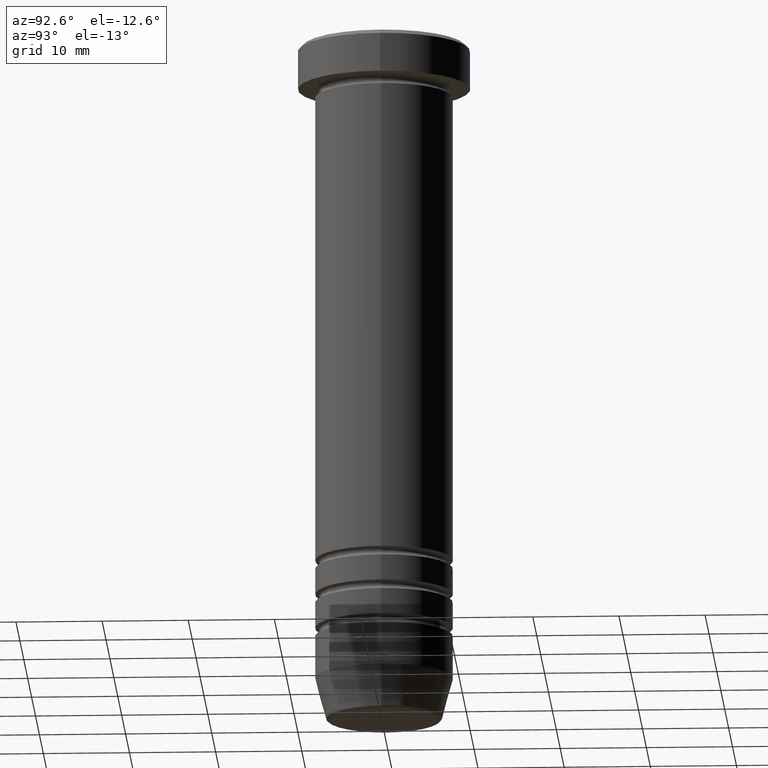
[diagram: clean part render]
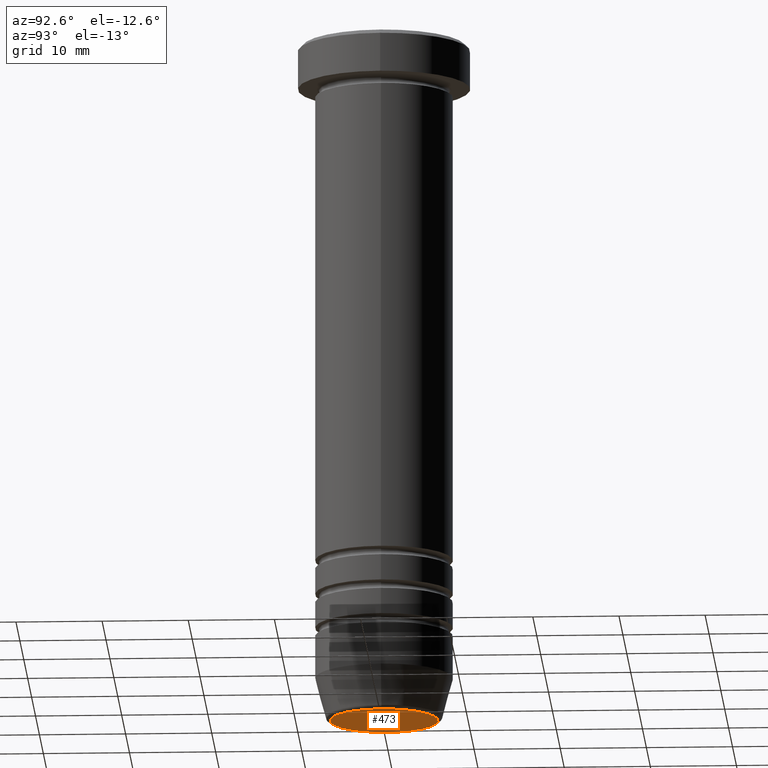
[diagram: same view with one face highlighted and labeled with its STEP entity id]
A machine part, auxiliary view. The second image highlights one B-rep face of the part: STEP entity #473.
In plain terms, the highlighted planar face has unit normal (0, -0, 1).
Its self-contained STEP definition (entity closure, byte-faithful):
#23 = ORIENTED_EDGE ( 'NONE', *, *, #213, .T. ) ;
#43 = CARTESIAN_POINT ( 'NONE',  ( -6.276590543854900339, 7.982336011935116411E-16, -79.99999999999998579 ) ) ;
#62 = CARTESIAN_POINT ( 'NONE',  ( 0.000000000000000000, 0.000000000000000000, -79.99999999999998579 ) ) ;
#93 = ORIENTED_EDGE ( 'NONE', *, *, #737, .T. ) ;
#105 = CIRCLE ( 'NONE', #796, 6.276590543854900339 ) ;
#213 = EDGE_CURVE ( 'NONE', #926, #488, #1031, .T. ) ;
#227 = DIRECTION ( 'NONE',  ( 1.000000000000000000, 0.000000000000000000, 0.000000000000000000 ) ) ;
#255 = EDGE_LOOP ( 'NONE', ( #93, #23 ) ) ;
#298 = DIRECTION ( 'NONE',  ( 0.000000000000000000, -0.000000000000000000, 1.000000000000000000 ) ) ;
#381 = DIRECTION ( 'NONE',  ( 1.000000000000000000, 0.000000000000000000, 0.000000000000000000 ) ) ;
#473 = ADVANCED_FACE ( 'NONE', ( #516 ), #841, .F. ) ;
#488 = VERTEX_POINT ( 'NONE', #527 ) ;
#516 = FACE_OUTER_BOUND ( 'NONE', #255, .T. ) ;
#527 = CARTESIAN_POINT ( 'NONE',  ( 6.276590543854900339, 0.000000000000000000, -79.99999999999998579 ) ) ;
#638 = CARTESIAN_POINT ( 'NONE',  ( 0.000000000000000000, 0.000000000000000000, -79.99999999999998579 ) ) ;
#642 = DIRECTION ( 'NONE',  ( 1.000000000000000000, 0.000000000000000000, 0.000000000000000000 ) ) ;
#737 = EDGE_CURVE ( 'NONE', #488, #926, #105, .T. ) ;
#795 = AXIS2_PLACEMENT_3D ( 'NONE', #638, #888, #227 ) ;
#796 = AXIS2_PLACEMENT_3D ( 'NONE', #62, #966, #642 ) ;
#841 = PLANE ( 'NONE',  #1015 ) ;
#888 = DIRECTION ( 'NONE',  ( 0.000000000000000000, 0.000000000000000000, -1.000000000000000000 ) ) ;
#926 = VERTEX_POINT ( 'NONE', #43 ) ;
#948 = CARTESIAN_POINT ( 'NONE',  ( 0.000000000000000000, 3.673940397442057600E-15, -79.99999999999998579 ) ) ;
#966 = DIRECTION ( 'NONE',  ( 0.000000000000000000, 0.000000000000000000, -1.000000000000000000 ) ) ;
#1015 = AXIS2_PLACEMENT_3D ( 'NONE', #948, #298, #381 ) ;
#1031 = CIRCLE ( 'NONE', #795, 6.276590543854900339 ) ;